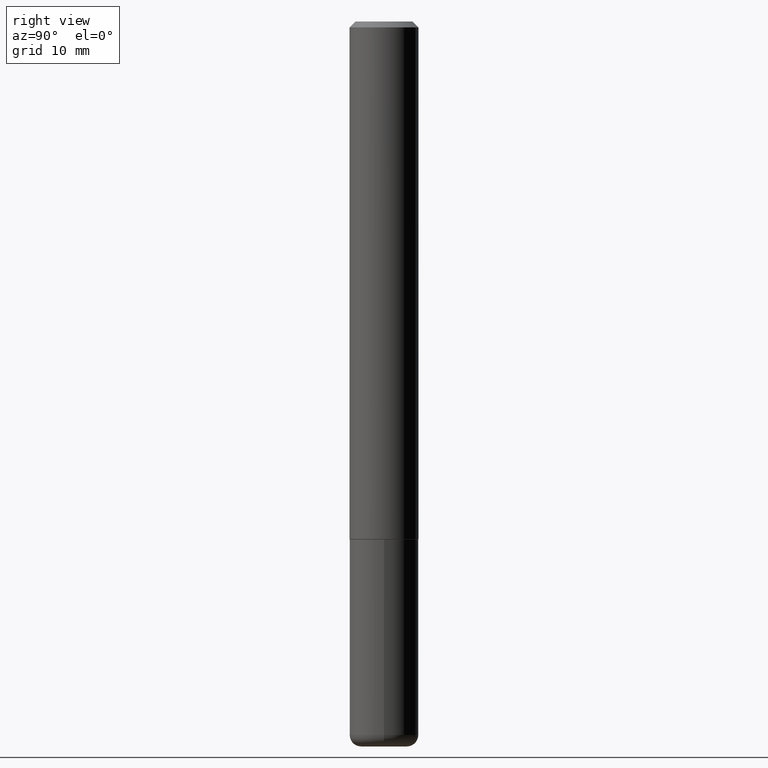
[diagram: clean part render]
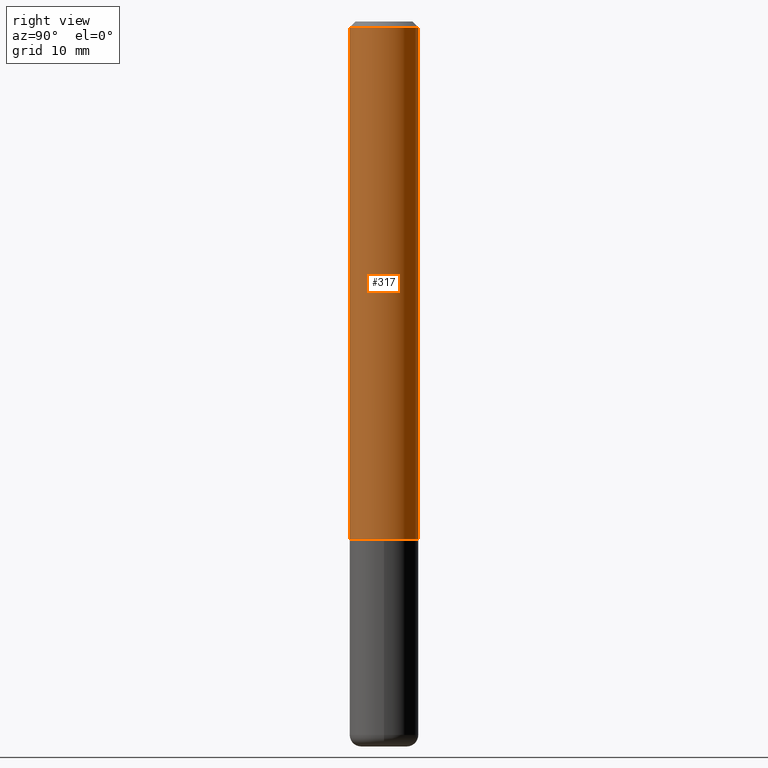
[diagram: same view with one face highlighted and labeled with its STEP entity id]
A machine part, right view. The second image highlights one B-rep face of the part: STEP entity #317.
In plain terms, the highlighted cylindrical surface (edge-blend (fillet) strip) has radius 2.9997 mm, axis along (-0, 0, 1).
Its self-contained STEP definition (entity closure, byte-faithful):
#3 = VERTEX_POINT ( 'NONE', #37 ) ;
#10 = CARTESIAN_POINT ( 'NONE',  ( 8.391509709327014685E-16, 0.1180999999999940708, -1.770600000000000840 ) ) ;
#26 = DIRECTION ( 'NONE',  ( -2.443238767566187138E-29, 3.494674881071397310E-15, 1.000000000000000000 ) ) ;
#37 = CARTESIAN_POINT ( 'NONE',  ( -8.102248135368172434E-16, -0.1181000000000000660, -0.01999999999999962919 ) ) ;
#46 = VECTOR ( 'NONE', #121, 39.37007874015748143 ) ;
#66 = AXIS2_PLACEMENT_3D ( 'NONE', #302, #337, #365 ) ;
#86 = CARTESIAN_POINT ( 'NONE',  ( 8.391509709326790846E-16, 0.1181000000000001215, -4.127211034545323724E-16 ) ) ;
#95 = AXIS2_PLACEMENT_3D ( 'NONE', #408, #213, #128 ) ;
#102 = VERTEX_POINT ( 'NONE', #366 ) ;
#112 = EDGE_CURVE ( 'NONE', #102, #3, #185, .T. ) ;
#121 = DIRECTION ( 'NONE',  ( -2.443238767566187138E-29, 3.494674881071397310E-15, 1.000000000000000000 ) ) ;
#128 = DIRECTION ( 'NONE',  ( -6.982962677686265922E-15, -1.000000000000000000, 3.494674881071396522E-15 ) ) ;
#135 = AXIS2_PLACEMENT_3D ( 'NONE', #217, #338, #410 ) ;
#142 = ORIENTED_EDGE ( 'NONE', *, *, #284, .T. ) ;
#149 = CIRCLE ( 'NONE', #66, 0.1181000000000002326 ) ;
#160 = CARTESIAN_POINT ( 'NONE',  ( 8.246878922347484598E-16, 0.1180999999999999273, -0.02000000000000045838 ) ) ;
#165 = VERTEX_POINT ( 'NONE', #10 ) ;
#185 = LINE ( 'NONE', #274, #46 ) ;
#191 = ORIENTED_EDGE ( 'NONE', *, *, #112, .F. ) ;
#213 = DIRECTION ( 'NONE',  ( -2.443238767566187138E-29, 3.494674881071396916E-15, 1.000000000000000000 ) ) ;
#215 = CYLINDRICAL_SURFACE ( 'NONE', #95, 0.1181000000000001215 ) ;
#217 = CARTESIAN_POINT ( 'NONE',  ( 4.886477535132384121E-31, -6.989349762142808870E-17, -0.02000000000000004205 ) ) ;
#222 = ORIENTED_EDGE ( 'NONE', *, *, #352, .T. ) ;
#229 = CIRCLE ( 'NONE', #135, 0.1180999999999999966 ) ;
#243 = FACE_OUTER_BOUND ( 'NONE', #312, .T. ) ;
#274 = CARTESIAN_POINT ( 'NONE',  ( -8.246878922347488542E-16, -0.1181000000000001215, 4.127211034545323724E-16 ) ) ;
#279 = LINE ( 'NONE', #86, #293 ) ;
#284 = EDGE_CURVE ( 'NONE', #165, #415, #279, .T. ) ;
#293 = VECTOR ( 'NONE', #26, 39.37007874015748143 ) ;
#302 = CARTESIAN_POINT ( 'NONE',  ( 4.325998561852691348E-29, -6.187671344425017014E-15, -1.770600000000000174 ) ) ;
#312 = EDGE_LOOP ( 'NONE', ( #222, #142, #340, #191 ) ) ;
#317 = ADVANCED_FACE ( 'NONE', ( #243 ), #215, .T. ) ;
#337 = DIRECTION ( 'NONE',  ( -2.443238767566187138E-29, 3.494674881071396916E-15, 1.000000000000000000 ) ) ;
#338 = DIRECTION ( 'NONE',  ( -2.443238767566187138E-29, 3.494674881071396916E-15, 1.000000000000000000 ) ) ;
#340 = ORIENTED_EDGE ( 'NONE', *, *, #370, .F. ) ;
#352 = EDGE_CURVE ( 'NONE', #102, #165, #149, .T. ) ;
#365 = DIRECTION ( 'NONE',  ( -6.982962677686265922E-15, -1.000000000000000000, 4.626330217890360659E-15 ) ) ;
#366 = CARTESIAN_POINT ( 'NONE',  ( -8.246878922347063544E-16, -0.1181000000000064221, -1.770599999999999730 ) ) ;
#370 = EDGE_CURVE ( 'NONE', #3, #415, #229, .T. ) ;
#408 = CARTESIAN_POINT ( 'NONE',  ( 0.000000000000000000, 0.000000000000000000, 0.000000000000000000 ) ) ;
#410 = DIRECTION ( 'NONE',  ( -6.982962677686265922E-15, -1.000000000000000000, 3.505890868245046092E-15 ) ) ;
#415 = VERTEX_POINT ( 'NONE', #160 ) ;